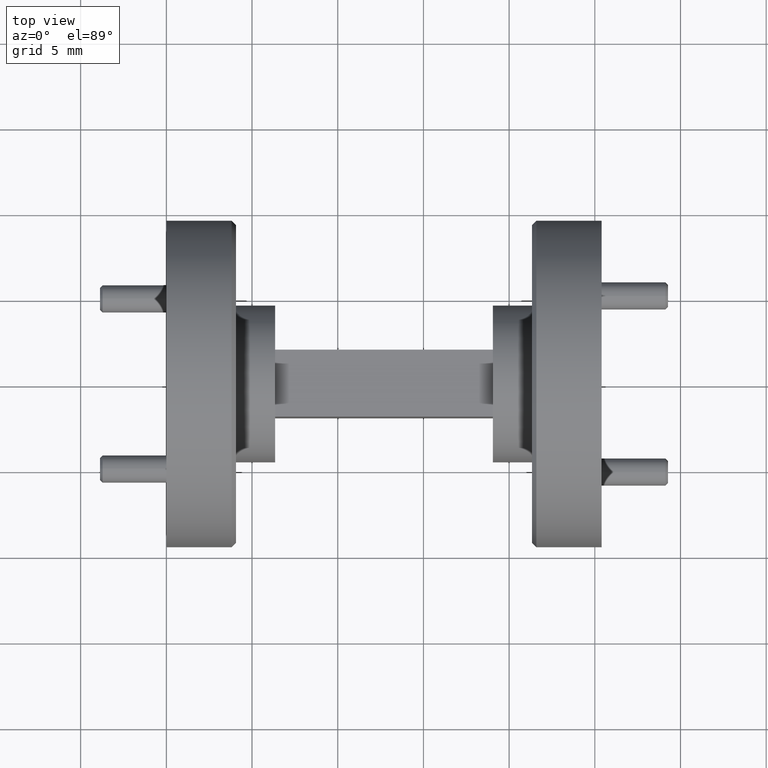
[diagram: clean part render]
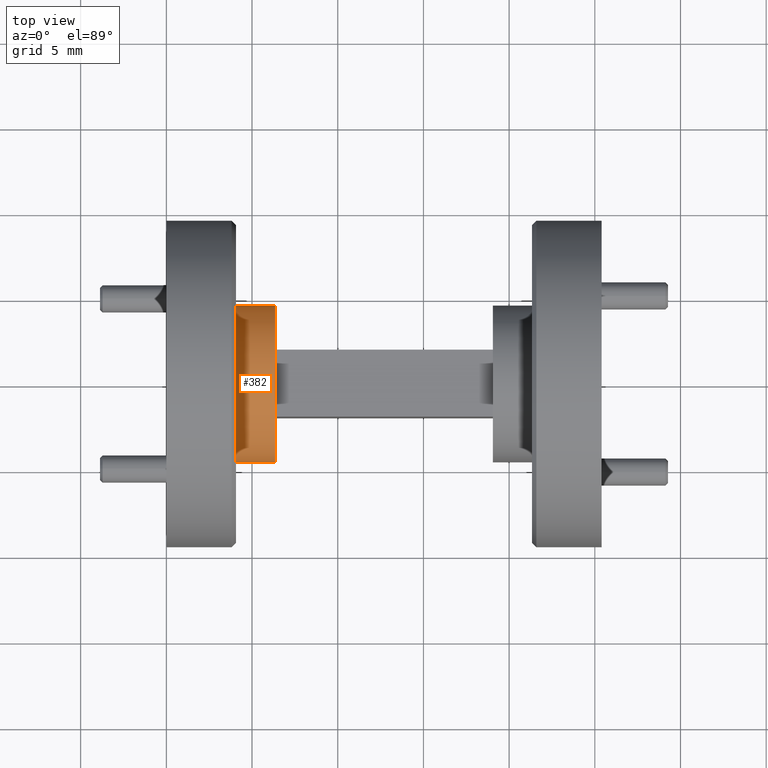
[diagram: same view with one face highlighted and labeled with its STEP entity id]
A machine part, top view. The second image highlights one B-rep face of the part: STEP entity #382.
In plain terms, the highlighted cylindrical surface (partial cylindrical patch) has radius 4.572 mm, axis along (1, 0, -0).
Its self-contained STEP definition (entity closure, byte-faithful):
#360 = AXIS2_PLACEMENT_3D ( 'NONE', #5205, #2387, #822 ) ;
#382 = ADVANCED_FACE ( 'NONE', ( #1112 ), #5134, .T. ) ;
#822 = DIRECTION ( 'NONE',  ( -1.897116662266852169E-16, 1.000000000000000000, 0.000000000000000000 ) ) ;
#967 = EDGE_LOOP ( 'NONE', ( #1401, #3360, #6152, #3780 ) ) ;
#1064 = CARTESIAN_POINT ( 'NONE',  ( 0.2499999999999999722, -0.1799999999999997435, 2.204364238465238287E-17 ) ) ;
#1112 = FACE_OUTER_BOUND ( 'NONE', #967, .T. ) ;
#1146 = DIRECTION ( 'NONE',  ( -1.224646799147227976E-16, 1.000000000000000000, 0.000000000000000000 ) ) ;
#1401 = ORIENTED_EDGE ( 'NONE', *, *, #4131, .T. ) ;
#1462 = CARTESIAN_POINT ( 'NONE',  ( 0.1600000000000001144, -0.1799999999999997158, 2.204364238465233049E-17 ) ) ;
#1564 = CARTESIAN_POINT ( 'NONE',  ( 0.1600000000000000311, 0.1799999999999997990, 0.000000000000000000 ) ) ;
#2102 = EDGE_CURVE ( 'NONE', #5845, #5556, #5635, .T. ) ;
#2181 = EDGE_CURVE ( 'NONE', #5556, #6566, #5011, .T. ) ;
#2212 = VECTOR ( 'NONE', #5436, 39.37007874015748143 ) ;
#2387 = DIRECTION ( 'NONE',  ( 1.000000000000000000, 1.224646799147353454E-16, -0.000000000000000000 ) ) ;
#2733 = CARTESIAN_POINT ( 'NONE',  ( -1.862686998503999683E-13, -0.1799999999999997990, 2.204364238465233049E-17 ) ) ;
#2784 = VECTOR ( 'NONE', #3376, 39.37007874015748143 ) ;
#2887 = AXIS2_PLACEMENT_3D ( 'NONE', #4486, #6768, #1146 ) ;
#2959 = DIRECTION ( 'NONE',  ( 1.000000000000000000, 0.000000000000000000, 5.173954533455056704E-16 ) ) ;
#3360 = ORIENTED_EDGE ( 'NONE', *, *, #3634, .T. ) ;
#3376 = DIRECTION ( 'NONE',  ( 1.000000000000000000, 1.224646799147353454E-16, -0.000000000000000000 ) ) ;
#3524 = CARTESIAN_POINT ( 'NONE',  ( 0.2499999999999999722, 3.004059132814580182E-17, 0.000000000000000000 ) ) ;
#3634 = EDGE_CURVE ( 'NONE', #5909, #6566, #4346, .T. ) ;
#3723 = CARTESIAN_POINT ( 'NONE',  ( 0.2499999999999999722, 0.1799999999999998268, 5.300421491823493223E-32 ) ) ;
#3780 = ORIENTED_EDGE ( 'NONE', *, *, #2102, .F. ) ;
#4131 = EDGE_CURVE ( 'NONE', #5845, #5909, #7134, .T. ) ;
#4346 = LINE ( 'NONE', #2733, #2212 ) ;
#4486 = CARTESIAN_POINT ( 'NONE',  ( -1.862907434927846262E-13, -5.755786505608412837E-19, 0.000000000000000000 ) ) ;
#4660 = DIRECTION ( 'NONE',  ( -5.691349986800554781E-16, 0.000000000000000000, 1.000000000000000000 ) ) ;
#5011 = CIRCLE ( 'NONE', #5602, 0.1799999999999997990 ) ;
#5134 = CYLINDRICAL_SURFACE ( 'NONE', #2887, 0.1799999999999997990 ) ;
#5205 = CARTESIAN_POINT ( 'NONE',  ( 0.1600000000000000588, 1.901877013581963504E-17, 0.000000000000000000 ) ) ;
#5436 = DIRECTION ( 'NONE',  ( 1.000000000000000000, 1.224646799147353454E-16, -0.000000000000000000 ) ) ;
#5556 = VERTEX_POINT ( 'NONE', #3723 ) ;
#5557 = CARTESIAN_POINT ( 'NONE',  ( -1.863127871351692589E-13, 0.1799999999999997990, 0.000000000000000000 ) ) ;
#5602 = AXIS2_PLACEMENT_3D ( 'NONE', #3524, #2959, #4660 ) ;
#5635 = LINE ( 'NONE', #5557, #2784 ) ;
#5845 = VERTEX_POINT ( 'NONE', #1564 ) ;
#5909 = VERTEX_POINT ( 'NONE', #1462 ) ;
#6152 = ORIENTED_EDGE ( 'NONE', *, *, #2181, .F. ) ;
#6566 = VERTEX_POINT ( 'NONE', #1064 ) ;
#6768 = DIRECTION ( 'NONE',  ( 1.000000000000000000, 1.224646799147353454E-16, -0.000000000000000000 ) ) ;
#7134 = CIRCLE ( 'NONE', #360, 0.1799999999999997435 ) ;